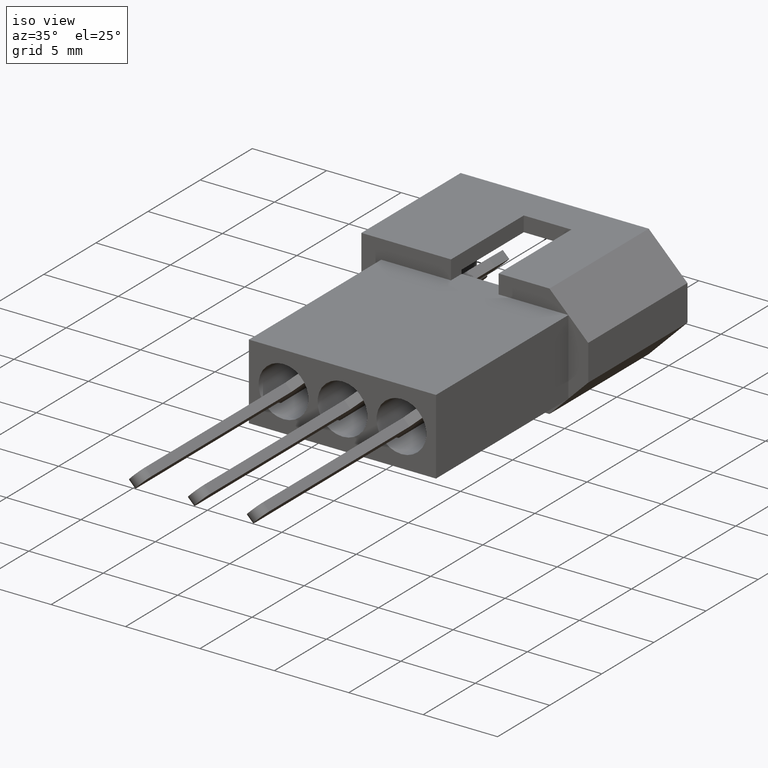
[diagram: clean part render]
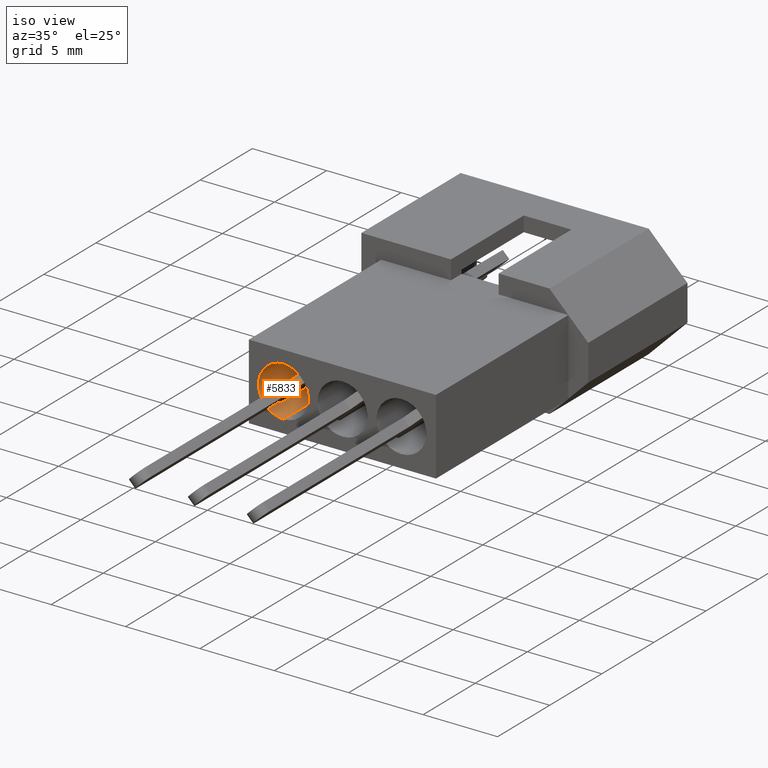
[diagram: same view with one face highlighted and labeled with its STEP entity id]
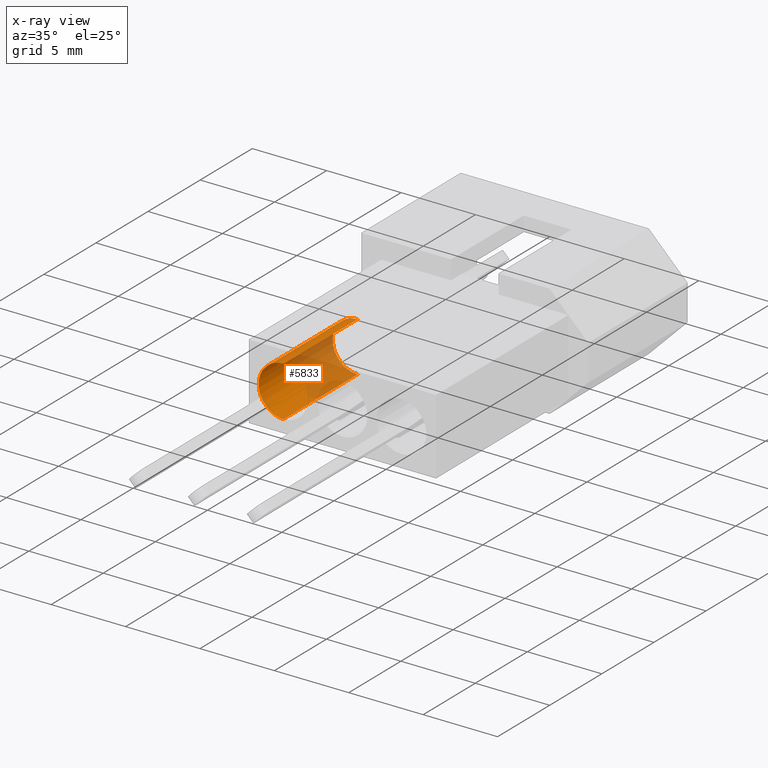
[diagram: x-ray of the same camera — body ghosted, the highlighted face saturated]
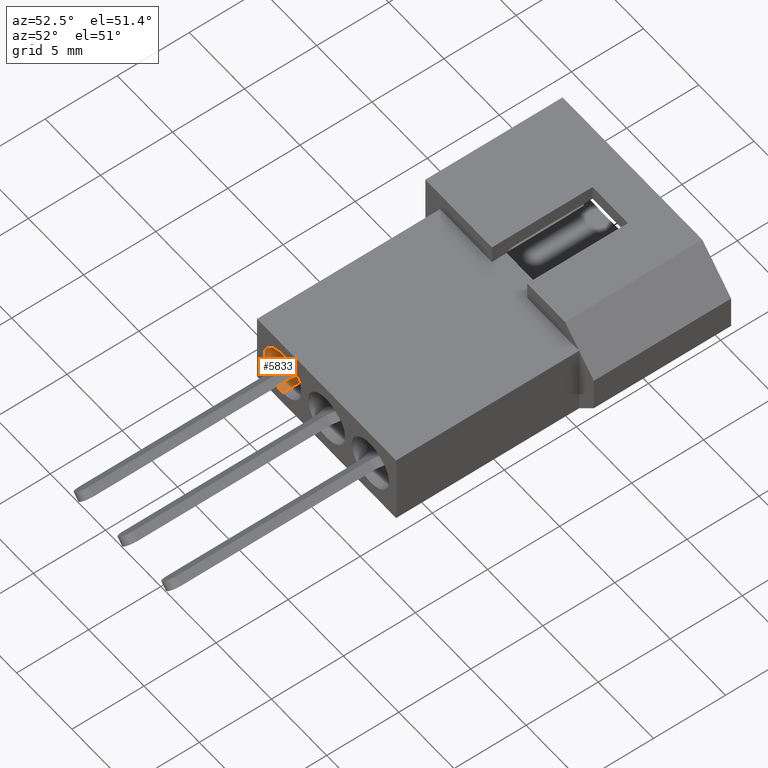
[diagram: same view with one face highlighted and labeled with its STEP entity id]
A machine part, iso view. The second image highlights one B-rep face of the part: STEP entity #5833.
The next image is the same camera in x-ray: the body ghosted, the highlighted face saturated — about 45% of this face is hidden behind the body in this view.
A second angle (auxiliary view) of the same face is appended — the face is thin or edge-on in the first view.
In plain terms, the highlighted cylindrical surface (edge-blend (fillet) strip) has radius 1.6764 mm, axis along (0, 1, 0).
Its self-contained STEP definition (entity closure, byte-faithful):
#146 = VECTOR ( 'NONE', #6286, 1000.000000000000000 ) ;
#217 = CARTESIAN_POINT ( 'NONE',  ( 0.0000000000000000000, -12.69999999999999900, 1.676399999999997900 ) ) ;
#830 = LINE ( 'NONE', #4269, #1925 ) ;
#1001 = FACE_OUTER_BOUND ( 'NONE', #3386, .T. ) ;
#1169 = EDGE_CURVE ( 'NONE', #4070, #6104, #830, .T. ) ;
#1175 = CYLINDRICAL_SURFACE ( 'NONE', #5776, 1.676399999999999700 ) ;
#1278 = EDGE_CURVE ( 'NONE', #4070, #4752, #4786, .T. ) ;
#1339 = AXIS2_PLACEMENT_3D ( 'NONE', #4349, #6323, #1365 ) ;
#1365 = DIRECTION ( 'NONE',  ( 0.0000000000000000000, 0.0000000000000000000, 1.000000000000000000 ) ) ;
#1505 = CIRCLE ( 'NONE', #1339, 1.676399999999999900 ) ;
#1691 = DIRECTION ( 'NONE',  ( -0.0000000000000000000, 1.000000000000000000, 1.232274823563231000E-016 ) ) ;
#1925 = VECTOR ( 'NONE', #1691, 1000.000000000000000 ) ;
#1950 = ORIENTED_EDGE ( 'NONE', *, *, #1169, .T. ) ;
#2247 = VERTEX_POINT ( 'NONE', #6303 ) ;
#2771 = ORIENTED_EDGE ( 'NONE', *, *, #3915, .T. ) ;
#3114 = CARTESIAN_POINT ( 'NONE',  ( 2.052997894090623400E-016, -12.69999999999999900, -1.676400000000001700 ) ) ;
#3243 = DIRECTION ( 'NONE',  ( -0.0000000000000000000, 1.000000000000000000, 1.232274823563231000E-016 ) ) ;
#3386 = EDGE_LOOP ( 'NONE', ( #5415, #1950, #2771, #6039 ) ) ;
#3617 = LINE ( 'NONE', #5296, #146 ) ;
#3915 = EDGE_CURVE ( 'NONE', #6104, #2247, #1505, .T. ) ;
#4070 = VERTEX_POINT ( 'NONE', #3114 ) ;
#4269 = CARTESIAN_POINT ( 'NONE',  ( 2.052997894090622700E-016, 2.313668333221628800, -1.676399999999999700 ) ) ;
#4337 = DIRECTION ( 'NONE',  ( 0.0000000000000000000, 0.0000000000000000000, 1.000000000000000000 ) ) ;
#4349 = CARTESIAN_POINT ( 'NONE',  ( 0.0000000000000000000, -5.588000000000001000, -9.737026951175853700E-016 ) ) ;
#4615 = CARTESIAN_POINT ( 'NONE',  ( 0.0000000000000000000, -5.588000000000001000, -1.676400000000000600 ) ) ;
#4752 = VERTEX_POINT ( 'NONE', #217 ) ;
#4786 = CIRCLE ( 'NONE', #6036, 1.676399999999999700 ) ;
#5255 = CARTESIAN_POINT ( 'NONE',  ( 0.0000000000000000000, 2.313668333221628800, 0.0000000000000000000 ) ) ;
#5296 = CARTESIAN_POINT ( 'NONE',  ( 0.0000000000000000000, 2.313668333221628800, 1.676399999999999700 ) ) ;
#5412 = DIRECTION ( 'NONE',  ( -0.0000000000000000000, 1.000000000000000000, 1.232274823563231000E-016 ) ) ;
#5415 = ORIENTED_EDGE ( 'NONE', *, *, #1278, .F. ) ;
#5423 = EDGE_CURVE ( 'NONE', #4752, #2247, #3617, .T. ) ;
#5776 = AXIS2_PLACEMENT_3D ( 'NONE', #5255, #3243, #5784 ) ;
#5784 = DIRECTION ( 'NONE',  ( 0.0000000000000000000, 0.0000000000000000000, 1.000000000000000000 ) ) ;
#5833 = ADVANCED_FACE ( 'NONE', ( #1001 ), #1175, .F. ) ;
#5835 = CARTESIAN_POINT ( 'NONE',  ( 0.0000000000000000000, -12.69999999999999900, -1.850096549635755000E-015 ) ) ;
#6036 = AXIS2_PLACEMENT_3D ( 'NONE', #5835, #5412, #4337 ) ;
#6039 = ORIENTED_EDGE ( 'NONE', *, *, #5423, .F. ) ;
#6104 = VERTEX_POINT ( 'NONE', #4615 ) ;
#6286 = DIRECTION ( 'NONE',  ( -0.0000000000000000000, 1.000000000000000000, 1.232274823563231000E-016 ) ) ;
#6303 = CARTESIAN_POINT ( 'NONE',  ( 2.052997894090623200E-016, -5.588000000000001000, 1.676399999999999200 ) ) ;
#6323 = DIRECTION ( 'NONE',  ( -0.0000000000000000000, 1.000000000000000000, 1.232274823563231000E-016 ) ) ;